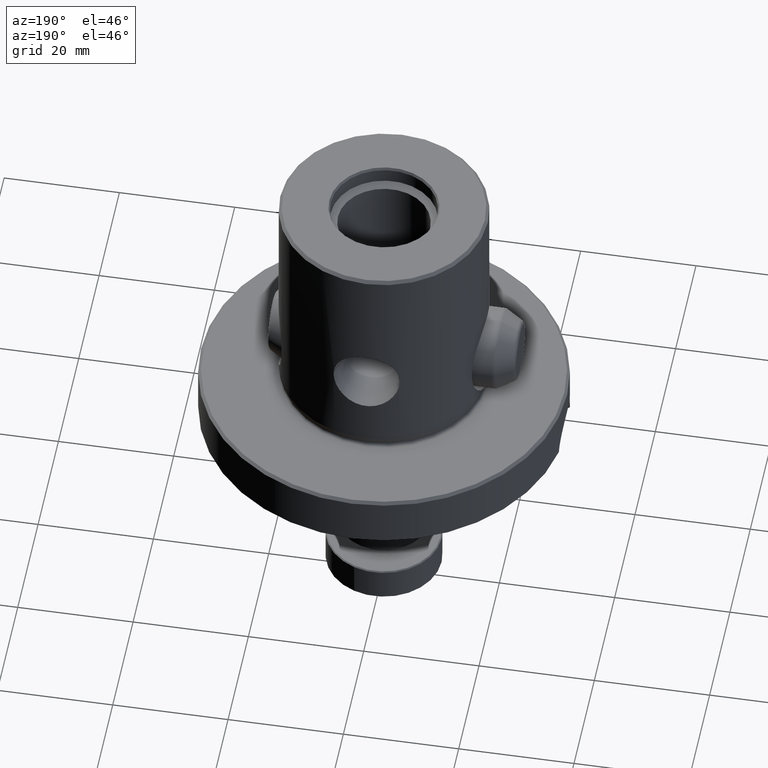
[diagram: clean part render]
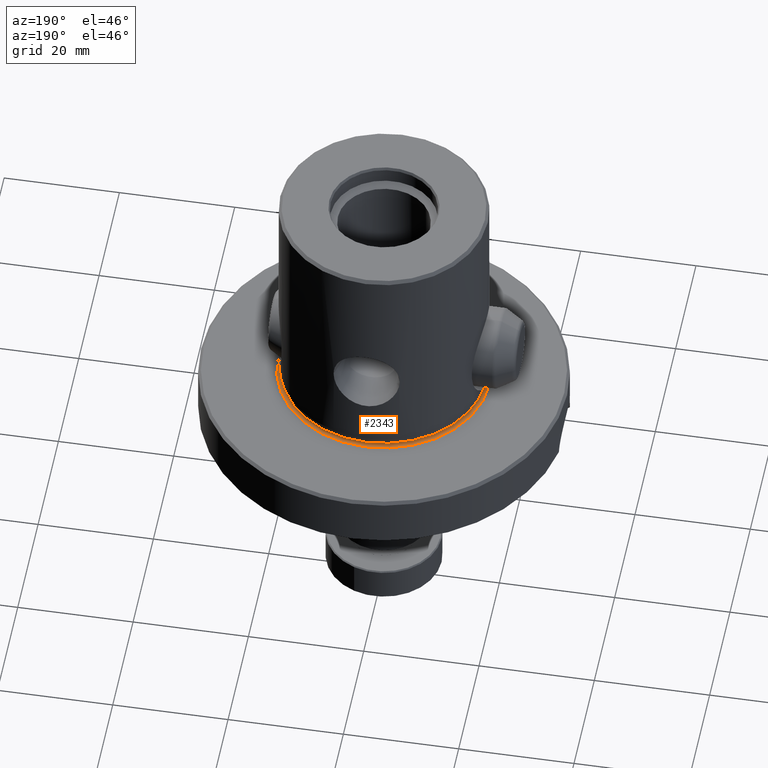
[diagram: same view with one face highlighted and labeled with its STEP entity id]
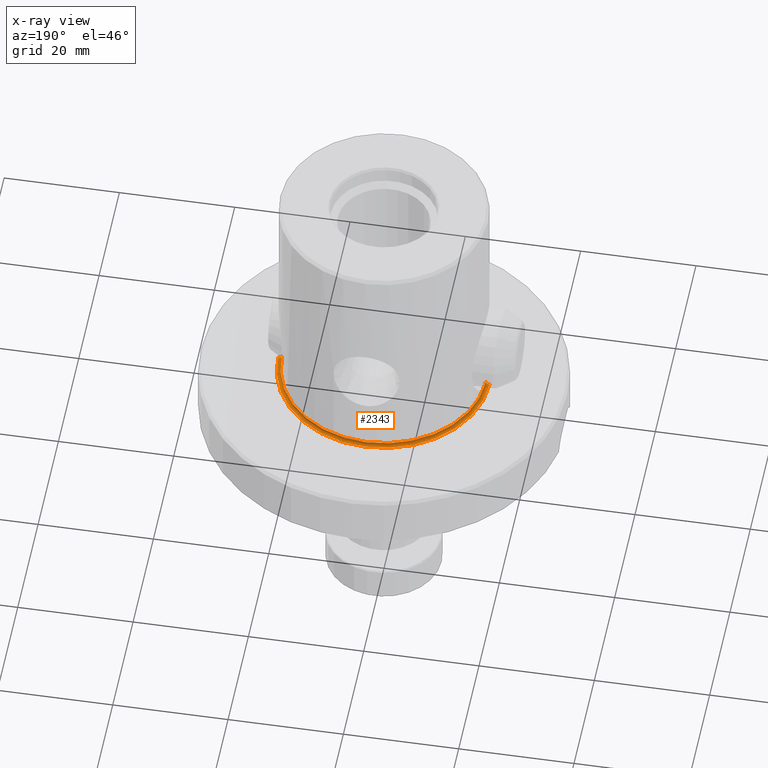
[diagram: x-ray of the same camera — body ghosted, the highlighted face saturated]
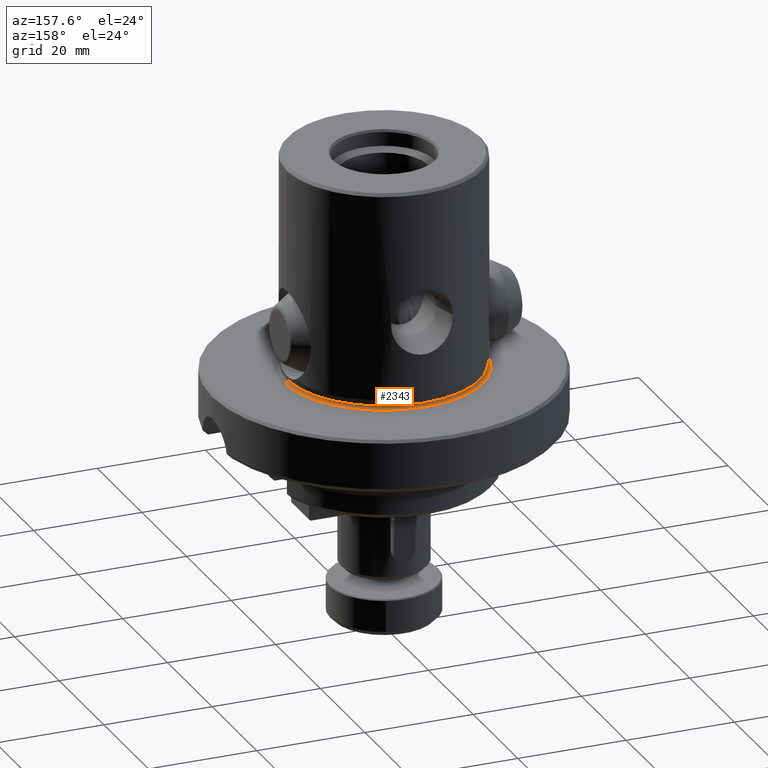
[diagram: same view with one face highlighted and labeled with its STEP entity id]
A machine part, auxiliary view. The second image highlights one B-rep face of the part: STEP entity #2343.
The next image is the same camera in x-ray: the body ghosted, the highlighted face saturated — about 0% of this face is hidden behind the body in this view.
A second angle (auxiliary view) of the same face is appended — the face is thin or edge-on in the first view.
In plain terms, the highlighted toroidal blend (fillet) surface has major radius 18.2 mm and minor (blend) radius 0.5 mm.
Its self-contained STEP definition (entity closure, byte-faithful):
#1735=EDGE_CURVE('NONE',#2097,#2663,#4011,.T.);
#1785=EDGE_CURVE('NONE',#1921,#2663,#4069,.T.);
#1921=VERTEX_POINT('NONE',#4221);
#2097=VERTEX_POINT('NONE',#4418);
#2175=EDGE_CURVE('NONE',#2785,#1921,#4508,.T.);
#2335=EDGE_CURVE('NONE',#2785,#2097,#4681,.T.);
#2343=ADVANCED_FACE('NONE',(#4691),#4692,.F.);
#2663=VERTEX_POINT('NONE',#5058);
#2785=VERTEX_POINT('NONE',#5192);
#4011=CIRCLE('',#7115,0.500000000000004);
#4069=CIRCLE('',#7211,18.3294095225513);
#4221=CARTESIAN_POINT('',(18.3294095225513,0.0,-0.182962913144536));
#4418=CARTESIAN_POINT('',(-17.7,2.16755324626561E-015,0.299999999999997));
#4508=CIRCLE('',#7952,0.500000000000004);
#4681=CIRCLE('',#8312,17.7);
#4691=FACE_OUTER_BOUND('',#8324,.T.);
#4692=TOROIDAL_SURFACE('',#8325,18.2,0.500000000000006);
#5058=CARTESIAN_POINT('',(-18.3294095225513,2.28644084357822E-015,-0.182962913144536));
#5192=CARTESIAN_POINT('',(17.7,0.0,0.299999999999997));
#7115=AXIS2_PLACEMENT_3D('',#10889,#10890,#10891);
#7211=AXIS2_PLACEMENT_3D('',#10974,#10975,#10976);
#7952=AXIS2_PLACEMENT_3D('',#11524,#11525,#11526);
#8312=AXIS2_PLACEMENT_3D('',#11694,#11695,#11696);
#8324=EDGE_LOOP('',(#11707,#11708,#11709,#11710));
#8325=AXIS2_PLACEMENT_3D('',#11711,#11712,#11713);
#10889=CARTESIAN_POINT('',(-18.2,2.22878356395673E-015,0.299999999999997));
#10890=DIRECTION('',(1.22460635382238E-016,1.0,0.0));
#10891=DIRECTION('',(1.0,-1.22460635382238E-016,-0.0));
#10974=CARTESIAN_POINT('',(0.0,0.0,-0.182962913144536));
#10975=DIRECTION('',(0.0,0.0,1.0));
#10976=DIRECTION('',(1.0,0.0,0.0));
#11524=CARTESIAN_POINT('',(18.2,0.0,0.299999999999997));
#11525=DIRECTION('',(0.0,-1.0,0.0));
#11526=DIRECTION('',(-1.0,0.0,0.0));
#11694=CARTESIAN_POINT('',(0.0,0.0,0.299999999999997));
#11695=DIRECTION('',(0.0,0.0,1.0));
#11696=DIRECTION('',(1.0,0.0,0.0));
#11707=ORIENTED_EDGE('',*,*,#2335,.F.);
#11708=ORIENTED_EDGE('',*,*,#2175,.T.);
#11709=ORIENTED_EDGE('',*,*,#1785,.T.);
#11710=ORIENTED_EDGE('',*,*,#1735,.F.);
#11711=CARTESIAN_POINT('',(0.0,0.0,0.299999999999997));
#11712=DIRECTION('',(0.0,0.0,1.0));
#11713=DIRECTION('',(1.0,0.0,0.0));